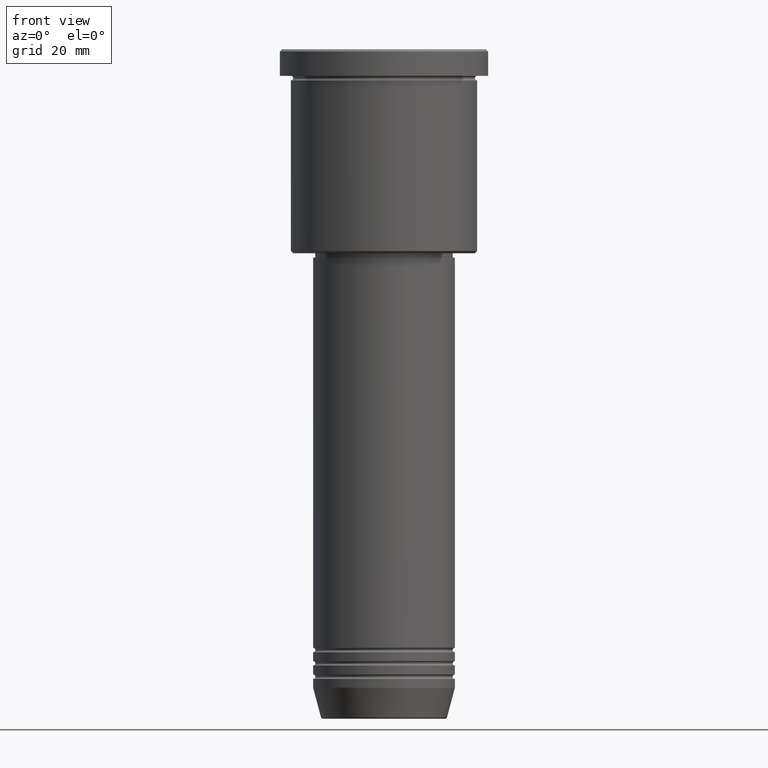
[diagram: clean part render]
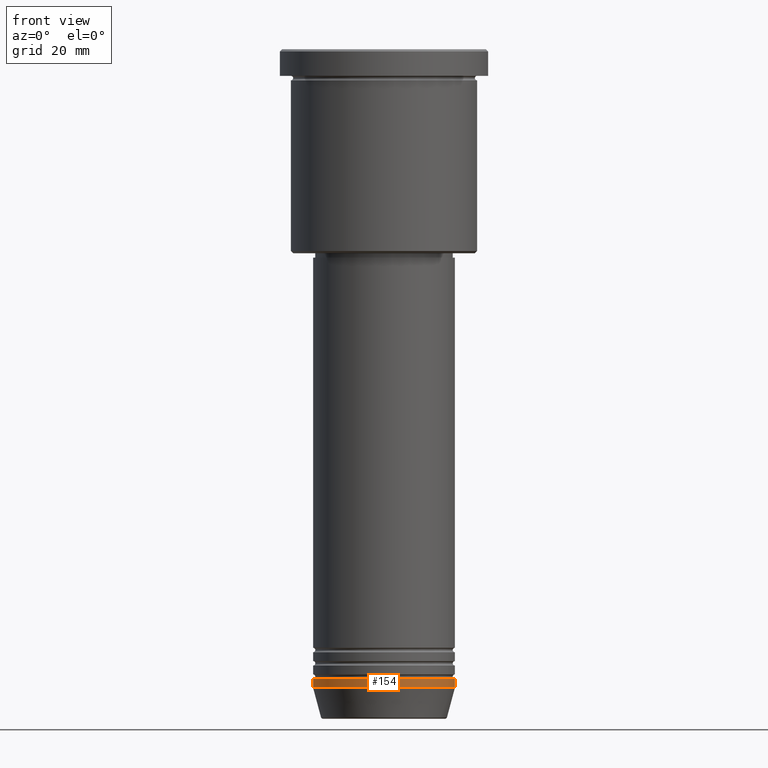
[diagram: same view with one face highlighted and labeled with its STEP entity id]
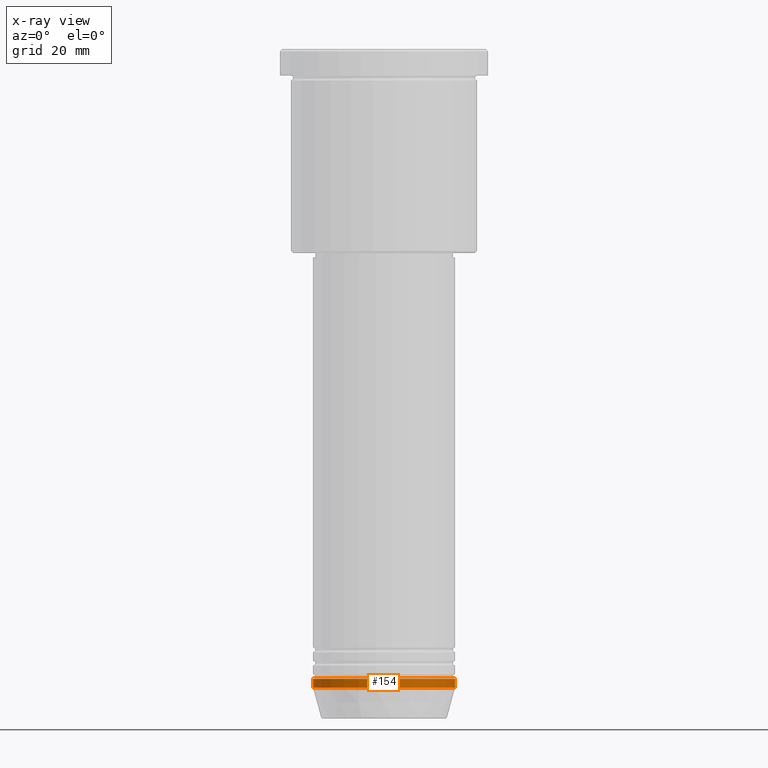
[diagram: x-ray of the same camera — body ghosted, the highlighted face saturated]
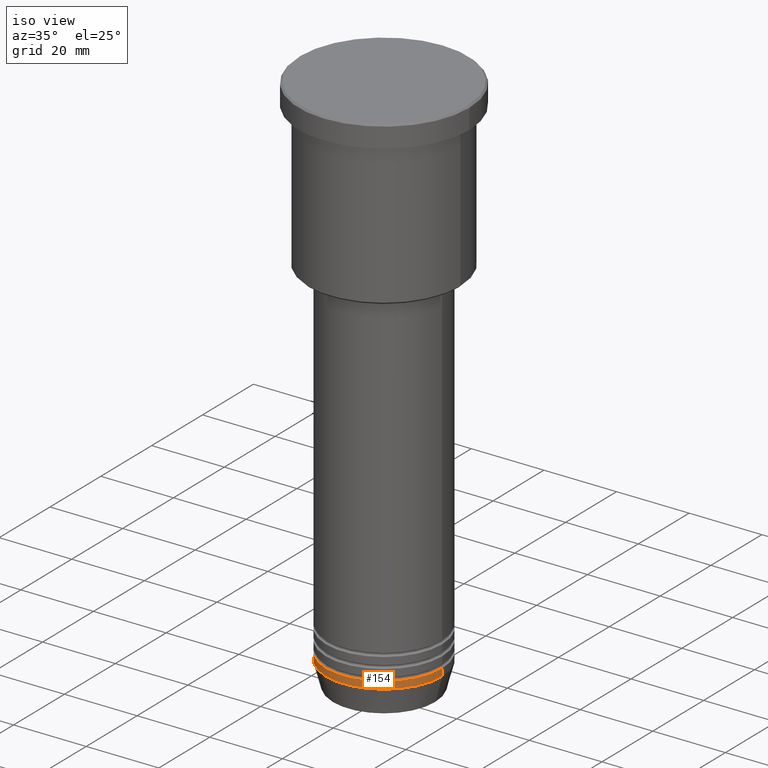
[diagram: same view with one face highlighted and labeled with its STEP entity id]
A machine part, front view. The second image highlights one B-rep face of the part: STEP entity #154.
The next image is the same camera in x-ray: the body ghosted, the highlighted face saturated — about 0% of this face is hidden behind the body in this view.
A second angle (iso view) of the same face is appended — the face is thin or edge-on in the first view.
In plain terms, the highlighted cylindrical surface (partial cylindrical patch) has radius 16 mm, axis along (-0, -0, 1).
Its self-contained STEP definition (entity closure, byte-faithful):
#33 = ORIENTED_EDGE ( 'NONE', *, *, #184, .F. ) ;
#45 = EDGE_LOOP ( 'NONE', ( #33, #433, #514, #624 ) ) ;
#81 = CYLINDRICAL_SURFACE ( 'NONE', #201, 16.00000000000000000 ) ;
#118 = VERTEX_POINT ( 'NONE', #1165 ) ;
#150 = DIRECTION ( 'NONE',  ( 1.000000000000000000, 0.000000000000000000, 0.000000000000000000 ) ) ;
#154 = ADVANCED_FACE ( 'NONE', ( #437 ), #81, .T. ) ;
#164 = DIRECTION ( 'NONE',  ( -0.000000000000000000, -0.000000000000000000, 1.000000000000000000 ) ) ;
#184 = EDGE_CURVE ( 'NONE', #118, #748, #502, .T. ) ;
#200 = EDGE_CURVE ( 'NONE', #748, #992, #509, .T. ) ;
#201 = AXIS2_PLACEMENT_3D ( 'NONE', #1161, #865, #150 ) ;
#246 = DIRECTION ( 'NONE',  ( -0.000000000000000000, -0.000000000000000000, 1.000000000000000000 ) ) ;
#261 = CARTESIAN_POINT ( 'NONE',  ( 16.00000000000000000, 0.000000000000000000, -142.0000000000000000 ) ) ;
#339 = DIRECTION ( 'NONE',  ( 1.000000000000000000, 0.000000000000000000, 0.000000000000000000 ) ) ;
#401 = CARTESIAN_POINT ( 'NONE',  ( -16.00000000000000000, 1.959434878635765131E-15, -142.0000000000000000 ) ) ;
#433 = ORIENTED_EDGE ( 'NONE', *, *, #973, .T. ) ;
#437 = FACE_OUTER_BOUND ( 'NONE', #45, .T. ) ;
#502 = LINE ( 'NONE', #714, #1010 ) ;
#509 = CIRCLE ( 'NONE', #834, 16.00000000000000000 ) ;
#514 = ORIENTED_EDGE ( 'NONE', *, *, #541, .T. ) ;
#529 = CARTESIAN_POINT ( 'NONE',  ( 0.000000000000000000, 0.000000000000000000, -142.0000000000000000 ) ) ;
#541 = EDGE_CURVE ( 'NONE', #826, #992, #742, .T. ) ;
#624 = ORIENTED_EDGE ( 'NONE', *, *, #200, .F. ) ;
#627 = DIRECTION ( 'NONE',  ( 1.000000000000000000, 0.000000000000000000, 0.000000000000000000 ) ) ;
#646 = DIRECTION ( 'NONE',  ( -0.000000000000000000, -0.000000000000000000, 1.000000000000000000 ) ) ;
#675 = CARTESIAN_POINT ( 'NONE',  ( 16.00000000000000000, 0.000000000000000000, -144.0000000000000000 ) ) ;
#713 = CIRCLE ( 'NONE', #949, 16.00000000000000000 ) ;
#714 = CARTESIAN_POINT ( 'NONE',  ( -16.00000000000000000, 1.959434878635765131E-15, 0.000000000000000000 ) ) ;
#742 = LINE ( 'NONE', #1105, #870 ) ;
#748 = VERTEX_POINT ( 'NONE', #401 ) ;
#826 = VERTEX_POINT ( 'NONE', #675 ) ;
#834 = AXIS2_PLACEMENT_3D ( 'NONE', #529, #246, #627 ) ;
#865 = DIRECTION ( 'NONE',  ( -0.000000000000000000, -0.000000000000000000, 1.000000000000000000 ) ) ;
#870 = VECTOR ( 'NONE', #646, 1000.000000000000000 ) ;
#888 = DIRECTION ( 'NONE',  ( -0.000000000000000000, -0.000000000000000000, 1.000000000000000000 ) ) ;
#949 = AXIS2_PLACEMENT_3D ( 'NONE', #1078, #164, #339 ) ;
#973 = EDGE_CURVE ( 'NONE', #118, #826, #713, .T. ) ;
#992 = VERTEX_POINT ( 'NONE', #261 ) ;
#1010 = VECTOR ( 'NONE', #888, 1000.000000000000000 ) ;
#1078 = CARTESIAN_POINT ( 'NONE',  ( 0.000000000000000000, 0.000000000000000000, -144.0000000000000000 ) ) ;
#1105 = CARTESIAN_POINT ( 'NONE',  ( 16.00000000000000000, 0.000000000000000000, 0.000000000000000000 ) ) ;
#1161 = CARTESIAN_POINT ( 'NONE',  ( 0.000000000000000000, 0.000000000000000000, 0.000000000000000000 ) ) ;
#1165 = CARTESIAN_POINT ( 'NONE',  ( -16.00000000000000000, 1.959434878635765131E-15, -144.0000000000000000 ) ) ;